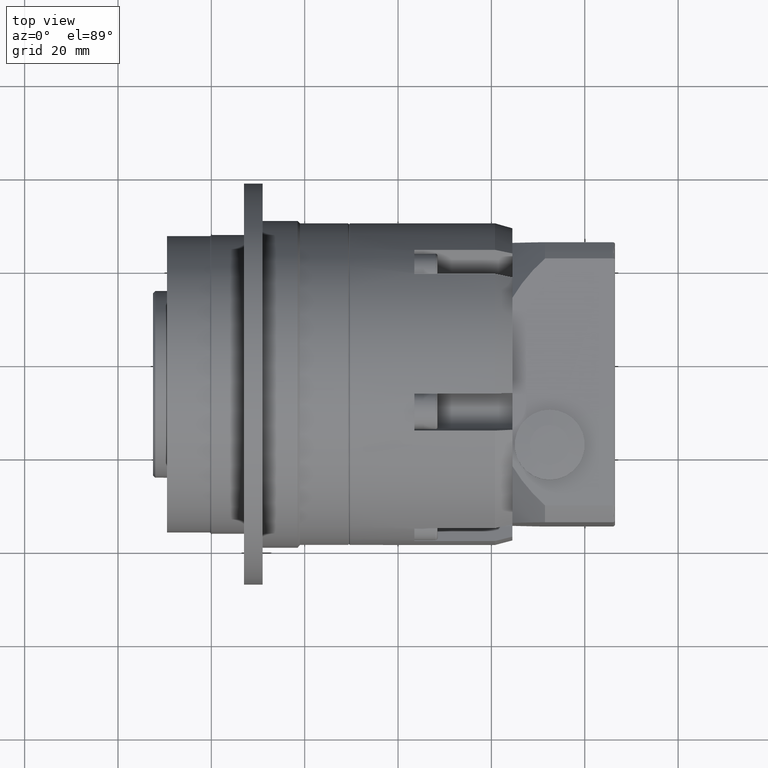
[diagram: clean part render]
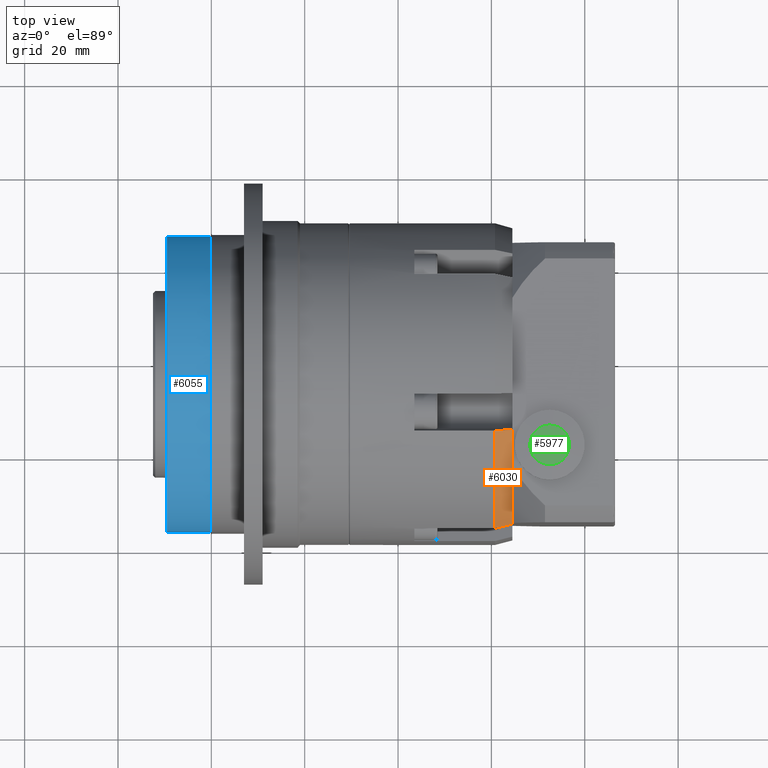
[diagram: same view with three faces highlighted in distinct colors, each labeled with its STEP entity id]
A machine part, top view with three faces highlighted in distinct colors.
Their STEP definitions:

[orange] entity #6030 — the highlighted conical surface has half-angle 15 deg.
#93=(
BOUNDED_CURVE()
B_SPLINE_CURVE(2,(#10116,#10117,#10118),.UNSPECIFIED.,.F.,.F.)
B_SPLINE_CURVE_WITH_KNOTS((3,3),(0.,0.386551955755495),.UNSPECIFIED.)
CURVE()
GEOMETRIC_REPRESENTATION_ITEM()
RATIONAL_B_SPLINE_CURVE((1.,1.00010966738823,1.))
REPRESENTATION_ITEM('')
);
#97=(
BOUNDED_CURVE()
B_SPLINE_CURVE(2,(#10152,#10153,#10154),.UNSPECIFIED.,.F.,.F.)
B_SPLINE_CURVE_WITH_KNOTS((3,3),(0.,0.386551955755495),.UNSPECIFIED.)
CURVE()
GEOMETRIC_REPRESENTATION_ITEM()
RATIONAL_B_SPLINE_CURVE((1.,1.00010966819596,1.))
REPRESENTATION_ITEM('')
);
#788=CONICAL_SURFACE('',#6694,34.,15.);
#1497=FACE_OUTER_BOUND('',#2018,.T.);
#2018=EDGE_LOOP('',(#4789,#4790,#4791,#4792,#4793,#4794));
#2351=CIRCLE('',#6476,33.5);
#2414=CIRCLE('',#6599,33.5);
#2417=CIRCLE('',#6604,33.5);
#2454=CIRCLE('',#6671,34.5);
#2786=VERTEX_POINT('',#9512);
#2787=VERTEX_POINT('',#9513);
#2864=VERTEX_POINT('',#9928);
#2867=VERTEX_POINT('',#9938);
#2905=VERTEX_POINT('',#10049);
#2906=VERTEX_POINT('',#10051);
#3404=EDGE_CURVE('',#2786,#2787,#2351,.T.);
#3518=EDGE_CURVE('',#2864,#2786,#2414,.T.);
#3522=EDGE_CURVE('',#2787,#2867,#2417,.T.);
#3566=EDGE_CURVE('',#2906,#2905,#2454,.T.);
#3592=EDGE_CURVE('',#2864,#2906,#93,.T.);
#3602=EDGE_CURVE('',#2905,#2867,#97,.T.);
#4789=ORIENTED_EDGE('',*,*,#3602,.T.);
#4790=ORIENTED_EDGE('',*,*,#3522,.F.);
#4791=ORIENTED_EDGE('',*,*,#3404,.F.);
#4792=ORIENTED_EDGE('',*,*,#3518,.F.);
#4793=ORIENTED_EDGE('',*,*,#3592,.T.);
#4794=ORIENTED_EDGE('',*,*,#3566,.T.);
#6030=ADVANCED_FACE('',(#1497),#788,.T.);
#6476=AXIS2_PLACEMENT_3D('',#9514,#7624,#7625);
#6599=AXIS2_PLACEMENT_3D('',#9930,#7908,#7909);
#6604=AXIS2_PLACEMENT_3D('',#9939,#7919,#7920);
#6671=AXIS2_PLACEMENT_3D('',#10052,#8060,#8061);
#6694=AXIS2_PLACEMENT_3D('',#10151,#8120,#8121);
#7624=DIRECTION('center_axis',(1.,-9.66417903210881E-16,3.05876261623541E-15));
#7625=DIRECTION('ref_axis',(3.05876261623542E-15,4.10912623371969E-15,-1.));
#7908=DIRECTION('center_axis',(1.,-9.66417903210881E-16,3.05876261623541E-15));
#7909=DIRECTION('ref_axis',(3.05876261623542E-15,4.10912623371969E-15,-1.));
#7919=DIRECTION('center_axis',(1.,-9.66417903210881E-16,3.05876261623541E-15));
#7920=DIRECTION('ref_axis',(3.05876261623542E-15,4.10912623371969E-15,-1.));
#8060=DIRECTION('center_axis',(1.,-9.66417903210881E-16,3.05876261623541E-15));
#8061=DIRECTION('ref_axis',(3.05876261623542E-15,4.10912623371969E-15,-1.));
#8120=DIRECTION('center_axis',(-1.,9.66417903210881E-16,-3.05876261623541E-15));
#8121=DIRECTION('ref_axis',(9.66417903210868E-16,1.,4.10912623371969E-15));
#9512=CARTESIAN_POINT('',(24.49239396734,-59.489185185119,48.8582107166003));
#9513=CARTESIAN_POINT('',(24.4923939673401,-74.5811336692434,33.7662622324757));
#9514=CARTESIAN_POINT('Origin',(24.4923939673402,-44.5811336692433,18.8582107166003));
#9928=CARTESIAN_POINT('',(24.4923939673401,-54.8540138421121,50.7442254088424));
#9930=CARTESIAN_POINT('Origin',(24.4923939673402,-44.5811336692433,18.8582107166003));
#9938=CARTESIAN_POINT('',(24.4923939673401,-74.727127268946,33.468791467778));
#9939=CARTESIAN_POINT('Origin',(24.4923939673402,-44.5811336692433,18.8582107166003));
#10049=CARTESIAN_POINT('',(20.7603431597712,-75.6792594087088,33.7966368549989));
#10051=CARTESIAN_POINT('',(20.7603431597712,-55.0461574781467,51.7327187232471));
#10052=CARTESIAN_POINT('Origin',(20.7603431597713,-44.5811336692433,18.8582107166003));
#10116=CARTESIAN_POINT('Ctrl Pts',(24.4923939673401,-54.8540138421121,50.7442254088424));
#10117=CARTESIAN_POINT('Ctrl Pts',(22.6541953432587,-54.9486728393061,51.2312037330045));
#10118=CARTESIAN_POINT('Ctrl Pts',(20.7603431597712,-55.0461574781467,51.7327187232471));
#10151=CARTESIAN_POINT('Origin',(22.6263685635557,-44.5811336692433,18.8582107166003));
#10152=CARTESIAN_POINT('Ctrl Pts',(20.7603431597712,-75.6792594087088,33.7966368549989));
#10153=CARTESIAN_POINT('Ctrl Pts',(22.6541953826951,-75.1961923572986,33.630303530128));
#10154=CARTESIAN_POINT('Ctrl Pts',(24.4923939673401,-74.727127268946,33.468791467778));

[blue] entity #6055 — the highlighted cylindrical surface (bore or boss wall) has radius 31.75 mm, axis along (1, -0, 0).
#1185=FACE_BOUND('',#2061,.T.);
#1522=FACE_OUTER_BOUND('',#2060,.T.);
#2060=EDGE_LOOP('',(#4864));
#2061=EDGE_LOOP('',(#4865));
#2493=CIRCLE('',#6745,31.75);
#2494=CIRCLE('',#6747,31.75);
#2955=VERTEX_POINT('',#10249);
#2956=VERTEX_POINT('',#10252);
#3635=EDGE_CURVE('',#2955,#2955,#2493,.T.);
#3636=EDGE_CURVE('',#2956,#2956,#2494,.T.);
#4864=ORIENTED_EDGE('',*,*,#3636,.F.);
#4865=ORIENTED_EDGE('',*,*,#3635,.T.);
#5446=CYLINDRICAL_SURFACE('',#6746,31.75);
#6055=ADVANCED_FACE('',(#1522,#1185),#5446,.T.);
#6745=AXIS2_PLACEMENT_3D('',#10250,#8226,#8227);
#6746=AXIS2_PLACEMENT_3D('',#10251,#8228,#8229);
#6747=AXIS2_PLACEMENT_3D('',#10253,#8230,#8231);
#8226=DIRECTION('center_axis',(1.,-4.82253126321556E-16,2.92855270575438E-15));
#8227=DIRECTION('ref_axis',(2.92855270575438E-15,3.1086244689506E-15,-1.));
#8228=DIRECTION('center_axis',(1.,-4.82253126321556E-16,2.92855270575438E-15));
#8229=DIRECTION('ref_axis',(4.82253126321546E-16,1.,3.10862446895061E-15));
#8230=DIRECTION('center_axis',(1.,-4.82253126321556E-16,2.92855270575438E-15));
#8231=DIRECTION('ref_axis',(2.92855270575438E-15,3.1086244689506E-15,-1.));
#10249=CARTESIAN_POINT('',(-49.5076060326597,-12.8311336692429,18.8582107166001));
#10250=CARTESIAN_POINT('Origin',(-49.5076060326597,-44.5811336692429,18.8582107166));
#10251=CARTESIAN_POINT('Origin',(-44.8826060326597,-44.5811336692429,18.8582107166));
#10252=CARTESIAN_POINT('',(-40.2576060326597,-12.8311336692429,18.8582107166001));
#10253=CARTESIAN_POINT('Origin',(-40.2576060326597,-44.5811336692429,18.8582107166));

[green] entity #5977 — the highlighted planar face has unit normal (-0, -0, 1).
#952=PLANE('',#6580);
#1444=FACE_OUTER_BOUND('',#1932,.T.);
#1932=EDGE_LOOP('',(#4602));
#2406=CIRCLE('',#6581,4.25);
#2857=VERTEX_POINT('',#9903);
#3509=EDGE_CURVE('',#2857,#2857,#2406,.T.);
#4602=ORIENTED_EDGE('',*,*,#3509,.F.);
#5977=ADVANCED_FACE('',(#1444),#952,.T.);
#6580=AXIS2_PLACEMENT_3D('',#9902,#7869,#7870);
#6581=AXIS2_PLACEMENT_3D('',#9904,#7871,#7872);
#7869=DIRECTION('center_axis',(-1.01294401717158E-15,-6.27407657960863E-15,
1.));
#7870=DIRECTION('ref_axis',(1.,7.8159700933611E-15,7.105427357601E-16));
#7871=DIRECTION('center_axis',(1.01294401717158E-15,6.27407657960863E-15,
-1.));
#7872=DIRECTION('ref_axis',(-1.,-8.00589540232333E-15,-1.01294401717163E-15));
#9902=CARTESIAN_POINT('Origin',(32.49239396734,-53.8311336692433,50.3582107166001));
#9903=CARTESIAN_POINT('',(32.49239396734,-53.8311336692433,50.3582107166001));
#9904=CARTESIAN_POINT('Origin',(32.49239396734,-58.0811336692433,50.3582107166001));